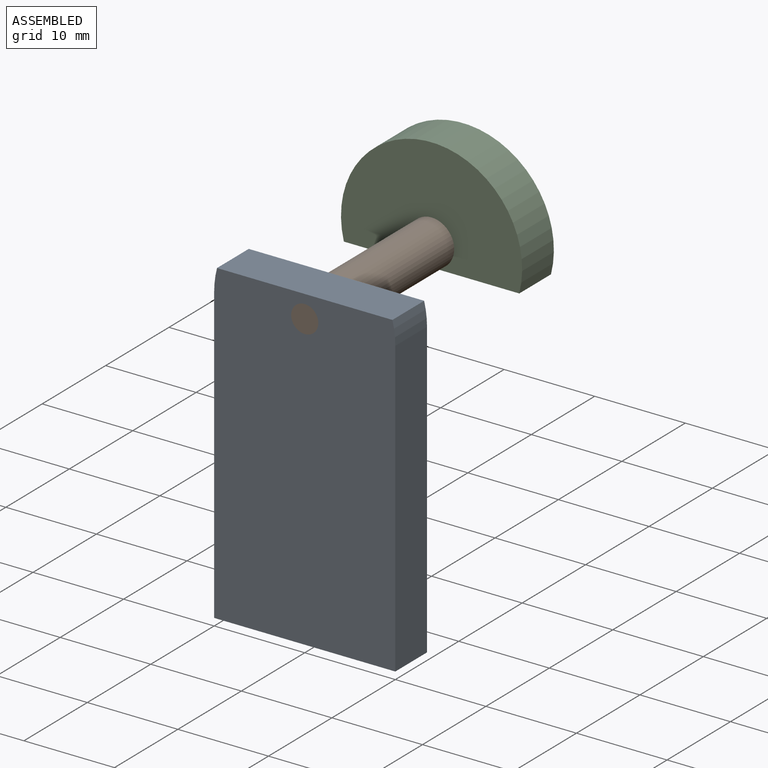
[diagram: assembled view]
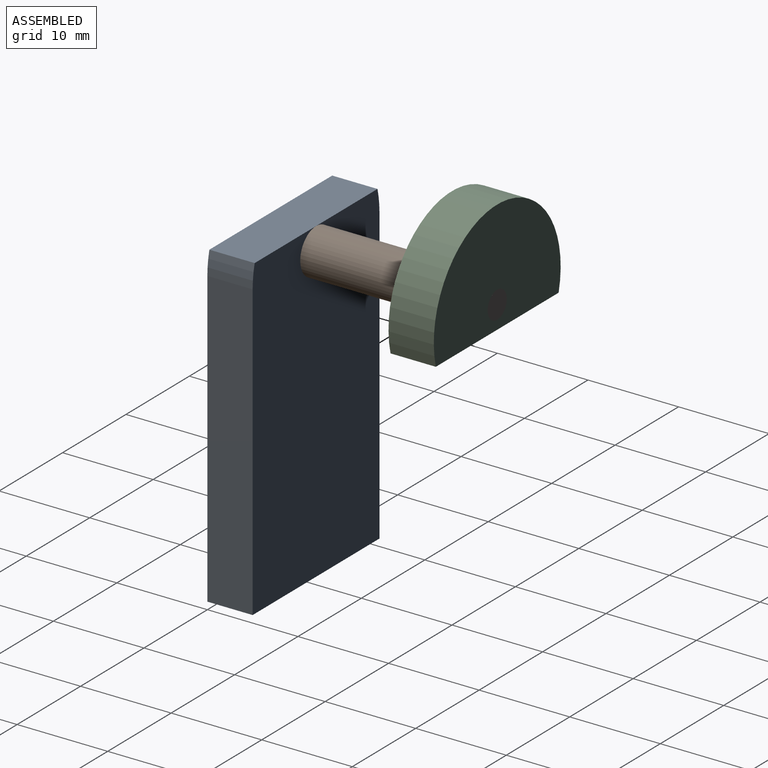
[diagram: assembled view, second angle]
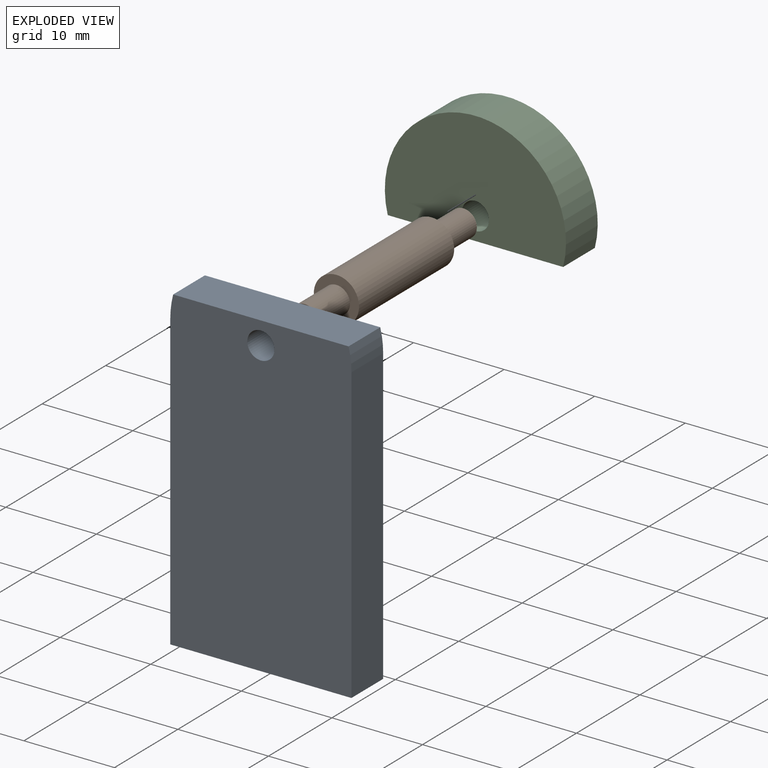
[diagram: exploded view]
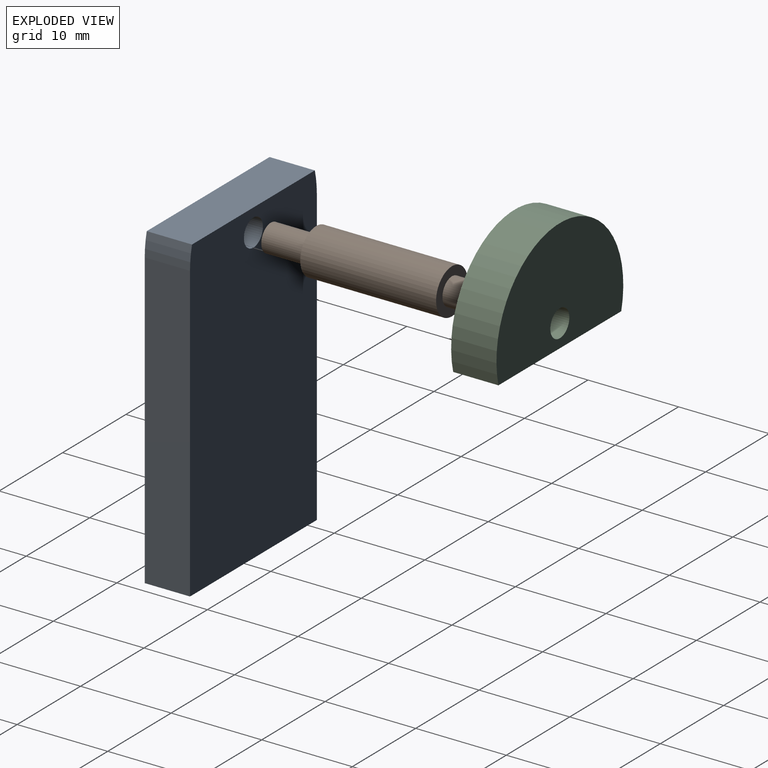
[diagram: exploded view, second angle]
ASSEMBLY  parts=3 mates=2
PART A: 9 faces, bbox 20x5x35 mm
  f0: plane 19.37x5mm, normal (0,0,1), area 96.8mm2, adj f1,f5,f7,f8
  f1: cylinder r=10mm len=5mm, axis (0,-1,0), area 12.6mm2, adj f0,f2,f7,f8
  f2: plane 32.5x5mm, normal (-1,0,0), area 162.5mm2, adj f1,f3,f7,f8
  f3: plane 20x5mm, normal (0,0,-1), area 100mm2, adj f2,f4,f7,f8
  f4: plane 32.5x5mm, normal (1,0,0), area 162.5mm2, adj f3,f5,f7,f8
  f5: cylinder r=10mm len=5mm, axis (0,-1,0), area 12.6mm2, adj f0,f4,f7,f8
  f6: cylinder r=1.5mm len=5mm, axis (0,-1,0), area 47.1mm2, adj f7,f8
  f7: plane 35x20mm, normal (0,1,0), area 692.4mm2, adj f0,f1,f2,f3,f4,f5,f6
  f8: plane 35x20mm, normal (0,-1,0), area 692.4mm2, adj f0,f1,f2,f3,f4,f5,f6
PART B: 7 faces, bbox 5x25x5 mm
  f0: cylinder r=2.5mm len=15mm, axis (0,-1,0), area 235.6mm2, adj f2,f5
  f1: cylinder r=1.5mm len=5mm, axis (0,-1,0), area 47.1mm2, adj f2,f3
  f2: plane 5x5mm, normal (0,-1,0), area 12.6mm2, adj f0,f1
  f3: plane 3x3mm, normal (0,-1,0), area 7.1mm2, adj f1
  f4: cylinder r=1.5mm len=5mm, axis (0,1,0), area 47.1mm2, adj f5,f6
  f5: plane 5x5mm, normal (0,1,0), area 12.6mm2, adj f0,f4
  f6: plane 3x3mm, normal (0,1,0), area 7.1mm2, adj f4
PART C: 5 faces, bbox 20x5x12.5 mm
  f0: cylinder r=10mm len=20mm, axis (0,1,0), area 182.3mm2, adj f1,f3,f4
  f1: plane 19.37x5mm, normal (0,0,-1), area 96.8mm2, adj f0,f3,f4
  f2: cylinder r=1.5mm len=5mm, axis (0,1,0), area 47.1mm2, adj f3,f4
  f3: plane 20x12.5mm, normal (0,-1,0), area 199.5mm2, adj f0,f1,f2
  f4: plane 20x12.5mm, normal (0,1,0), area 199.5mm2, adj f0,f1,f2
PLACE A at identity fixed
PLACE B at identity
PLACE C t=(0,25,0)mm
MATE fastened B.f0 <-> A.f6  axis (0,-1,0) through (0,5,0)mm
MATE fastened B.f4 <-> C.f2  axis (0,1,0) through (0,20,0)mm
